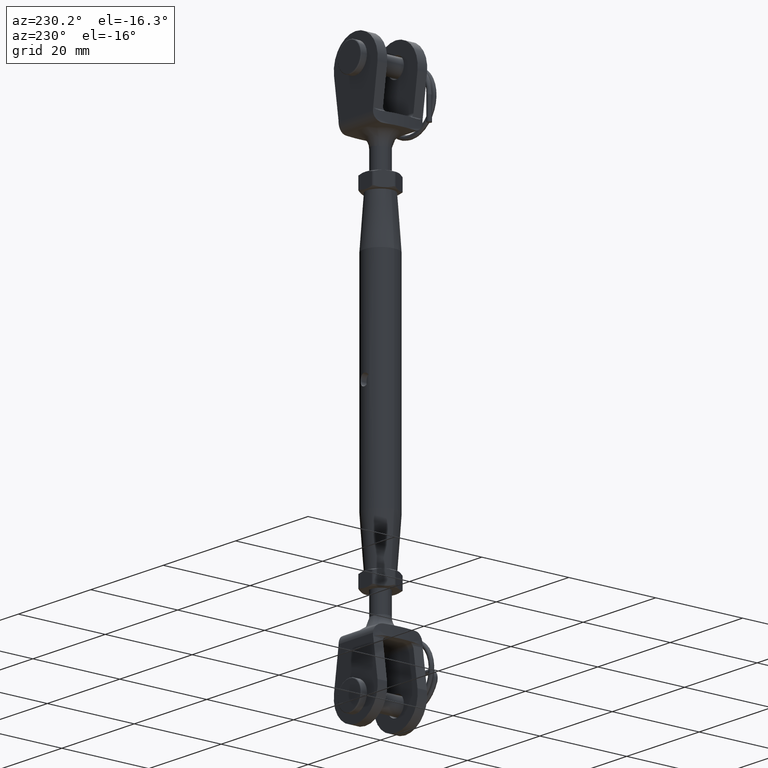
[diagram: clean part render]
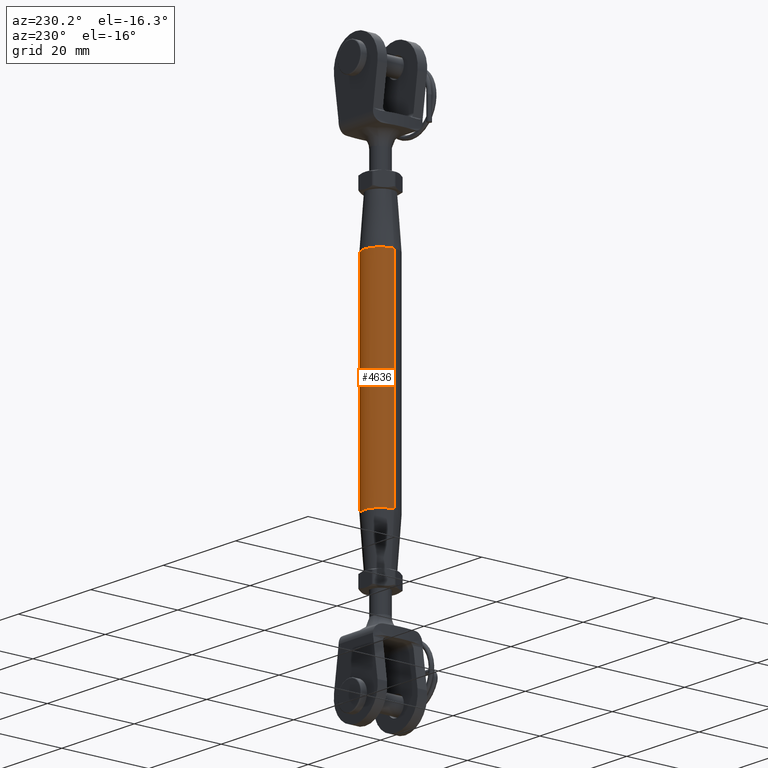
[diagram: same view with one face highlighted and labeled with its STEP entity id]
A machine part, auxiliary view. The second image highlights one B-rep face of the part: STEP entity #4636.
In plain terms, the highlighted cylindrical surface (edge-blend (fillet) strip) has radius 3.75 mm, axis along (0, 0, 1).
Its self-contained STEP definition (entity closure, byte-faithful):
#272 = CARTESIAN_POINT ( 'NONE',  ( -3.749999999999993800, 4.592425496802567100E-016, 24.00000000000000700 ) ) ;
#385 = EDGE_CURVE ( 'NONE', #8331, #26174, #14412, .T. ) ;
#875 = AXIS2_PLACEMENT_3D ( 'NONE', #13147, #9199, #17407 ) ;
#888 = CARTESIAN_POINT ( 'NONE',  ( 0.7694914848820421100, 3.672094268853624700, 0.9983159871190909800 ) ) ;
#899 = CARTESIAN_POINT ( 'NONE',  ( -0.1639837195683855600, 3.749999999999993300, -1.250000000000000000 ) ) ;
#1172 = CARTESIAN_POINT ( 'NONE',  ( 1.249980367484170500, 3.535540847075213700, 0.1648864926133729900 ) ) ;
#1428 = EDGE_CURVE ( 'NONE', #26882, #9631, #11334, .T. ) ;
#1842 = EDGE_LOOP ( 'NONE', ( #9322, #9903, #23209, #12716 ) ) ;
#1845 = VERTEX_POINT ( 'NONE', #26148 ) ;
#2344 = CARTESIAN_POINT ( 'NONE',  ( -1.249918302402952100, 3.535562790391177900, 0.1650250481899052700 ) ) ;
#2430 = CARTESIAN_POINT ( 'NONE',  ( -3.749999999999993800, 4.592425496802567100E-016, 35.00000000000000000 ) ) ;
#2510 = DIRECTION ( 'NONE',  ( 1.000000000000000000, 0.0000000000000000000, 0.0000000000000000000 ) ) ;
#3172 = CARTESIAN_POINT ( 'NONE',  ( 0.3294379438808626700, 3.738596043711421400, -1.216824182925260800 ) ) ;
#3265 = CARTESIAN_POINT ( 'NONE',  ( 1.185730390998943600, 3.557758522168658700, -0.4041149355553611500 ) ) ;
#3355 = VECTOR ( 'NONE', #24515, 1000.000000000000000 ) ;
#4526 = CARTESIAN_POINT ( 'NONE',  ( 3.749999999999993800, 0.0000000000000000000, -24.00000000000000700 ) ) ;
#4636 = ADVANCED_FACE ( 'NONE', ( #9105, #19929 ), #21967, .T. ) ;
#4766 = CARTESIAN_POINT ( 'NONE',  ( 1.531348962790299700E-016, 3.749999999999993800, -1.250000000000000000 ) ) ;
#5016 = LINE ( 'NONE', #7583, #3355 ) ;
#5289 = VECTOR ( 'NONE', #17569, 1000.000000000000000 ) ;
#5593 = ORIENTED_EDGE ( 'NONE', *, *, #1428, .T. ) ;
#5697 = AXIS2_PLACEMENT_3D ( 'NONE', #16373, #18292, #18570 ) ;
#6174 = EDGE_CURVE ( 'NONE', #15053, #1845, #5016, .T. ) ;
#6204 = CARTESIAN_POINT ( 'NONE',  ( 0.0000000000000000000, 3.749999999999992000, 1.250000000000000000 ) ) ;
#6577 = DIRECTION ( 'NONE',  ( -0.0000000000000000000, -0.0000000000000000000, 1.000000000000000000 ) ) ;
#6585 = CARTESIAN_POINT ( 'NONE',  ( -0.7635022463610677800, 3.672095763094378000, -0.9930626638971048500 ) ) ;
#6866 = CARTESIAN_POINT ( 'NONE',  ( 0.0000000000000000000, 0.0000000000000000000, -24.00000000000000700 ) ) ;
#6971 = CARTESIAN_POINT ( 'NONE',  ( -0.9986507671121063200, 3.616520871539895800, -0.7692025397317342500 ) ) ;
#7583 = CARTESIAN_POINT ( 'NONE',  ( 3.749999999999993800, 0.0000000000000000000, 35.00000000000000000 ) ) ;
#8331 = VERTEX_POINT ( 'NONE', #18835 ) ;
#8784 = CARTESIAN_POINT ( 'NONE',  ( -0.9986561048412725400, 3.616495352712100900, 0.7690085228847928200 ) ) ;
#8792 = CIRCLE ( 'NONE', #5697, 3.749999999999993800 ) ;
#8877 = CARTESIAN_POINT ( 'NONE',  ( -0.6320108780505505600, 3.699498500918843900, 1.090814025960213300 ) ) ;
#9061 = CARTESIAN_POINT ( 'NONE',  ( -1.185723957054449300, 3.557761199879605500, -0.4041576032034506800 ) ) ;
#9105 = FACE_BOUND ( 'NONE', #23999, .T. ) ;
#9199 = DIRECTION ( 'NONE',  ( -0.0000000000000000000, -0.0000000000000000000, 1.000000000000000000 ) ) ;
#9322 = ORIENTED_EDGE ( 'NONE', *, *, #28116, .T. ) ;
#9631 = VERTEX_POINT ( 'NONE', #6204 ) ;
#9704 = AXIS2_PLACEMENT_3D ( 'NONE', #6866, #6577, #2510 ) ;
#9903 = ORIENTED_EDGE ( 'NONE', *, *, #385, .T. ) ;
#10941 = CARTESIAN_POINT ( 'NONE',  ( -0.5552849340516129400, 3.709436454447219600, -1.122855488896884500 ) ) ;
#11140 = CARTESIAN_POINT ( 'NONE',  ( 0.0000000000000000000, 3.749999999999992000, 1.250000000000000000 ) ) ;
#11334 = B_SPLINE_CURVE_WITH_KNOTS ( 'NONE', 3,
 ( #26937, #24841, #3172, #26843, #18214, #13851, #18116, #3265, #22383, #14132, #15934, #1172, #14036, #24564, #18316, #888, #13943, #24939, #11971, #13753 ),
 .UNSPECIFIED., .F., .F.,
 ( 4, 2, 2, 2, 2, 2, 2, 2, 2, 4 ),
 ( 0.003936446506142174700, 0.004428377038671974300, 0.004920307571201773900, 0.005412238103731574300, 0.005658203369996475000, 0.005904168636261374800, 0.006396099168791174300, 0.006888029701320975600, 0.007379960233850775200, 0.007871890766380574800 ),
 .UNSPECIFIED. ) ;
#11971 = CARTESIAN_POINT ( 'NONE',  ( 0.1664231518548635300, 3.749999999999991600, 1.249999999999999800 ) ) ;
#12394 = CIRCLE ( 'NONE', #9704, 3.749999999999993800 ) ;
#12451 = EDGE_CURVE ( 'NONE', #1845, #26174, #8792, .T. ) ;
#12716 = ORIENTED_EDGE ( 'NONE', *, *, #6174, .F. ) ;
#12828 = B_SPLINE_CURVE_WITH_KNOTS ( 'NONE', 3,
 ( #11140, #19942, #26285, #8877, #13293, #8784, #15466, #17369, #2344, #17467, #19660, #26095, #9061, #24207, #6971, #19562, #6585, #23936, #10941, #13109, #899, #17841 ),
 .UNSPECIFIED., .F., .F.,
 ( 4, 2, 2, 2, 2, 2, 2, 2, 2, 2, 4 ),
 ( 0.0000000000000000000, 0.0004920558132677721700, 0.0009841116265355443400, 0.001476167439803316400, 0.001968223253071088700, 0.002214251159704974500, 0.002460279066338861200, 0.002952334879606632400, 0.003198362786240518200, 0.003444390692874404000, 0.003936446506142174700 ),
 .UNSPECIFIED. ) ;
#13109 = CARTESIAN_POINT ( 'NONE',  ( -0.3294706541054129900, 3.738581249397975100, -1.216771266839125100 ) ) ;
#13147 = CARTESIAN_POINT ( 'NONE',  ( 0.0000000000000000000, 0.0000000000000000000, 35.00000000000000000 ) ) ;
#13293 = CARTESIAN_POINT ( 'NONE',  ( -0.7698997003452273700, 3.672003145877368500, 0.9979692256851019300 ) ) ;
#13753 = CARTESIAN_POINT ( 'NONE',  ( 0.0000000000000000000, 3.749999999999992000, 1.250000000000000000 ) ) ;
#13851 = CARTESIAN_POINT ( 'NONE',  ( 0.9994538311842103800, 3.616309651833255100, -0.7682714119212791200 ) ) ;
#13943 = CARTESIAN_POINT ( 'NONE',  ( 0.6319329662578140300, 3.699510844021212600, 1.090854940319587700 ) ) ;
#14036 = CARTESIAN_POINT ( 'NONE',  ( 1.216649721504721800, 3.547759667013950000, 0.3299024798006965900 ) ) ;
#14132 = CARTESIAN_POINT ( 'NONE',  ( 1.241678343262102800, 3.538505998242470700, -0.1656134540541245300 ) ) ;
#14412 = LINE ( 'NONE', #2430, #5289 ) ;
#15053 = VERTEX_POINT ( 'NONE', #4526 ) ;
#15466 = CARTESIAN_POINT ( 'NONE',  ( -1.091466335872163500, 3.588247214533702800, 0.6305990485126673500 ) ) ;
#15934 = CARTESIAN_POINT ( 'NONE',  ( 1.250009802955045900, 3.535530440064762900, -0.08221989510962074400 ) ) ;
#16373 = CARTESIAN_POINT ( 'NONE',  ( 0.0000000000000000000, 0.0000000000000000000, 24.00000000000000700 ) ) ;
#17369 = CARTESIAN_POINT ( 'NONE',  ( -1.216495055809340800, 3.547810115288374100, 0.3302933567583763400 ) ) ;
#17407 = DIRECTION ( 'NONE',  ( 1.000000000000000000, 0.0000000000000000000, 0.0000000000000000000 ) ) ;
#17467 = CARTESIAN_POINT ( 'NONE',  ( -1.250040618164601500, 3.535519545244907300, -0.08158253637667015100 ) ) ;
#17569 = DIRECTION ( 'NONE',  ( -0.0000000000000000000, -0.0000000000000000000, 1.000000000000000000 ) ) ;
#17841 = CARTESIAN_POINT ( 'NONE',  ( 1.531348962790299700E-016, 3.749999999999993800, -1.250000000000000000 ) ) ;
#18116 = CARTESIAN_POINT ( 'NONE',  ( 1.090963977429627800, 3.588412831428237300, -0.6319488626941589500 ) ) ;
#18214 = CARTESIAN_POINT ( 'NONE',  ( 0.7686322532443405900, 3.672302808577157400, -0.9991763519603732400 ) ) ;
#18292 = DIRECTION ( 'NONE',  ( -0.0000000000000000000, -0.0000000000000000000, 1.000000000000000000 ) ) ;
#18316 = CARTESIAN_POINT ( 'NONE',  ( 0.9985882534272261200, 3.616519731008081000, 0.7691381251509360500 ) ) ;
#18570 = DIRECTION ( 'NONE',  ( 1.000000000000000000, 0.0000000000000000000, 0.0000000000000000000 ) ) ;
#18835 = CARTESIAN_POINT ( 'NONE',  ( -3.749999999999993800, 4.592425496802567100E-016, -24.00000000000000700 ) ) ;
#19562 = CARTESIAN_POINT ( 'NONE',  ( -0.8260014785984334300, 3.658377809847905400, -0.9417221101786831200 ) ) ;
#19660 = CARTESIAN_POINT ( 'NONE',  ( -1.241761983712016600, 3.538476749895197700, -0.1650882736092892900 ) ) ;
#19929 = FACE_OUTER_BOUND ( 'NONE', #1842, .T. ) ;
#19942 = CARTESIAN_POINT ( 'NONE',  ( -0.1664655351059554400, 3.749999999999991600, 1.249999999999999600 ) ) ;
#21967 = CYLINDRICAL_SURFACE ( 'NONE', #875, 3.749999999999993800 ) ;
#22383 = CARTESIAN_POINT ( 'NONE',  ( 1.209500571403290500, 3.549633526929108400, -0.3260387892030206000 ) ) ;
#23209 = ORIENTED_EDGE ( 'NONE', *, *, #12451, .F. ) ;
#23331 = EDGE_CURVE ( 'NONE', #9631, #26882, #12828, .T. ) ;
#23936 = CARTESIAN_POINT ( 'NONE',  ( -0.6284423705968736900, 3.697605057381419900, -1.083590938252711600 ) ) ;
#23999 = EDGE_LOOP ( 'NONE', ( #25356, #5593 ) ) ;
#24207 = CARTESIAN_POINT ( 'NONE',  ( -1.090794001129100200, 3.588466619310705800, -0.6323030360047412500 ) ) ;
#24515 = DIRECTION ( 'NONE',  ( -0.0000000000000000000, -0.0000000000000000000, 1.000000000000000000 ) ) ;
#24564 = CARTESIAN_POINT ( 'NONE',  ( 1.091355583177257200, 3.588283460207161800, 0.6308844443192386200 ) ) ;
#24841 = CARTESIAN_POINT ( 'NONE',  ( 0.1639419682043160000, 3.749999999999993800, -1.249999999999999800 ) ) ;
#24939 = CARTESIAN_POINT ( 'NONE',  ( 0.3296877630051802100, 3.738586061306945500, 1.216803087433496700 ) ) ;
#25356 = ORIENTED_EDGE ( 'NONE', *, *, #23331, .T. ) ;
#26095 = CARTESIAN_POINT ( 'NONE',  ( -1.209544131638287600, 3.549618786202352300, -0.3259293725565079500 ) ) ;
#26148 = CARTESIAN_POINT ( 'NONE',  ( 3.749999999999993800, 0.0000000000000000000, 24.00000000000000700 ) ) ;
#26174 = VERTEX_POINT ( 'NONE', #272 ) ;
#26285 = CARTESIAN_POINT ( 'NONE',  ( -0.3297197248178919700, 3.738584198776457400, 1.216798213456845100 ) ) ;
#26843 = CARTESIAN_POINT ( 'NONE',  ( 0.6311023444221306500, 3.699640464665183700, -1.091283776973280800 ) ) ;
#26882 = VERTEX_POINT ( 'NONE', #4766 ) ;
#26937 = CARTESIAN_POINT ( 'NONE',  ( 1.531348962790299700E-016, 3.749999999999993800, -1.250000000000000000 ) ) ;
#28116 = EDGE_CURVE ( 'NONE', #15053, #8331, #12394, .T. ) ;